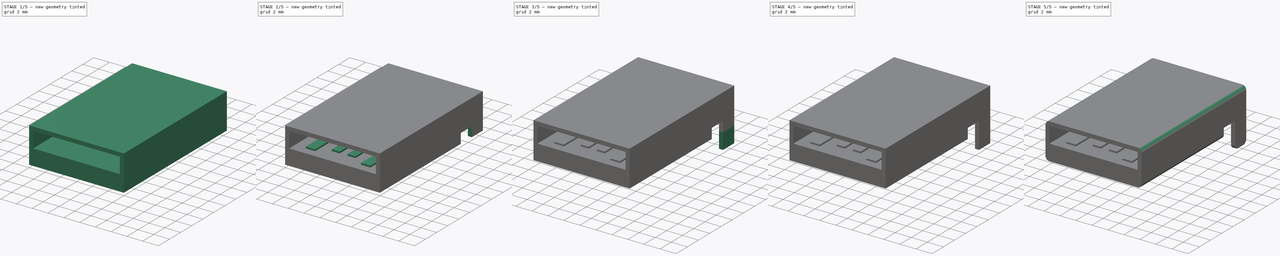
[diagram: build sequence overview — one tinted view per stage of 5, left to right]
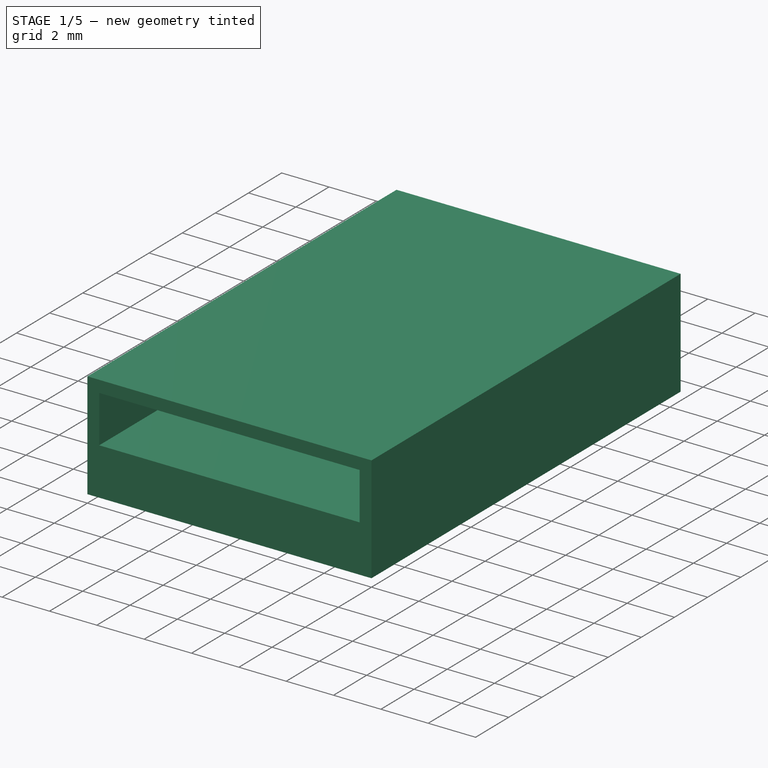
[diagram: stage 1 of 5 — iso view after this stage's code; geometry added in this stage tinted green]
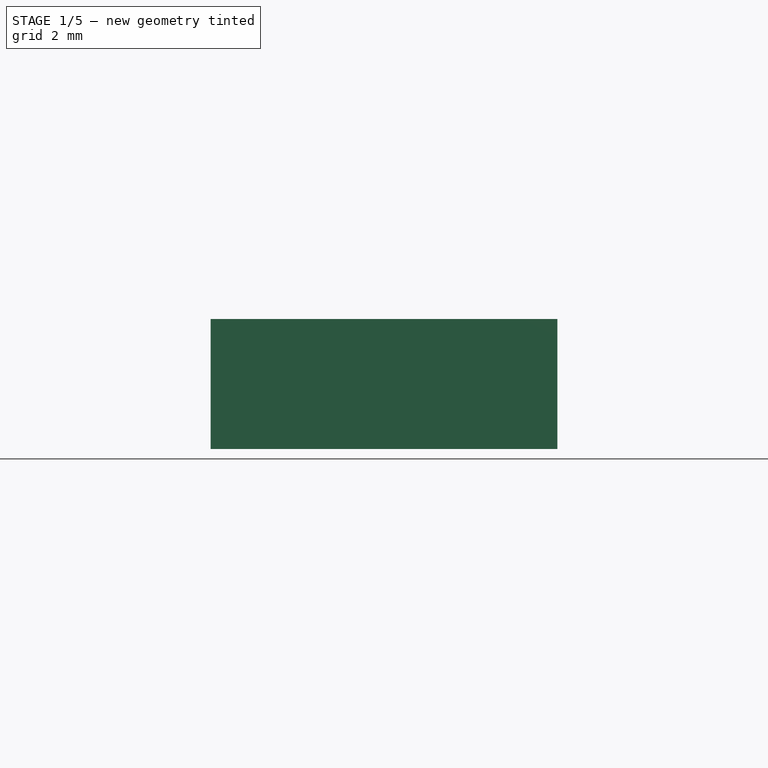
[diagram: stage 1 of 5 — front view after this stage's code; geometry added in this stage tinted green]
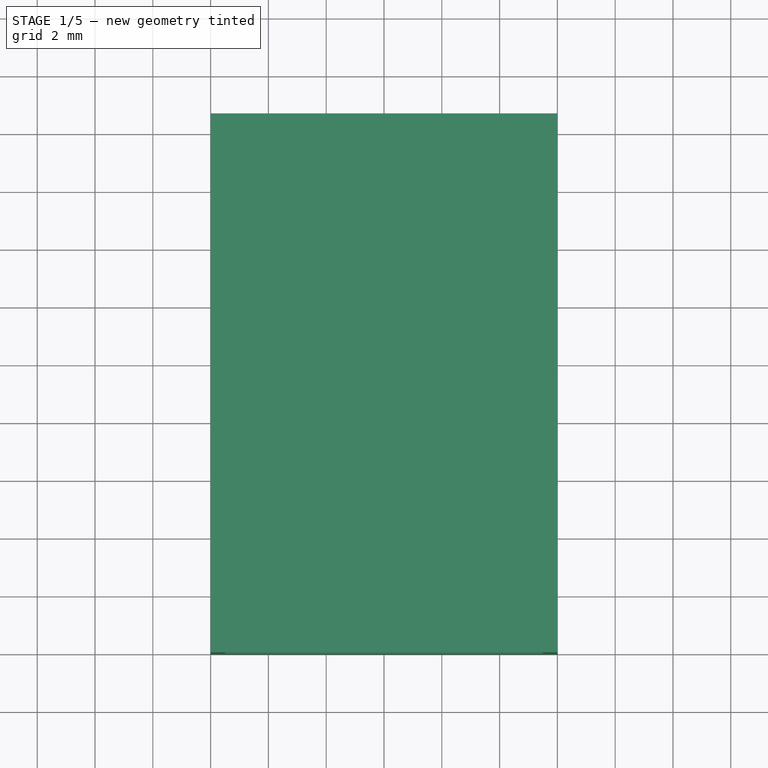
[diagram: stage 1 of 5 — top view after this stage's code; geometry added in this stage tinted green]
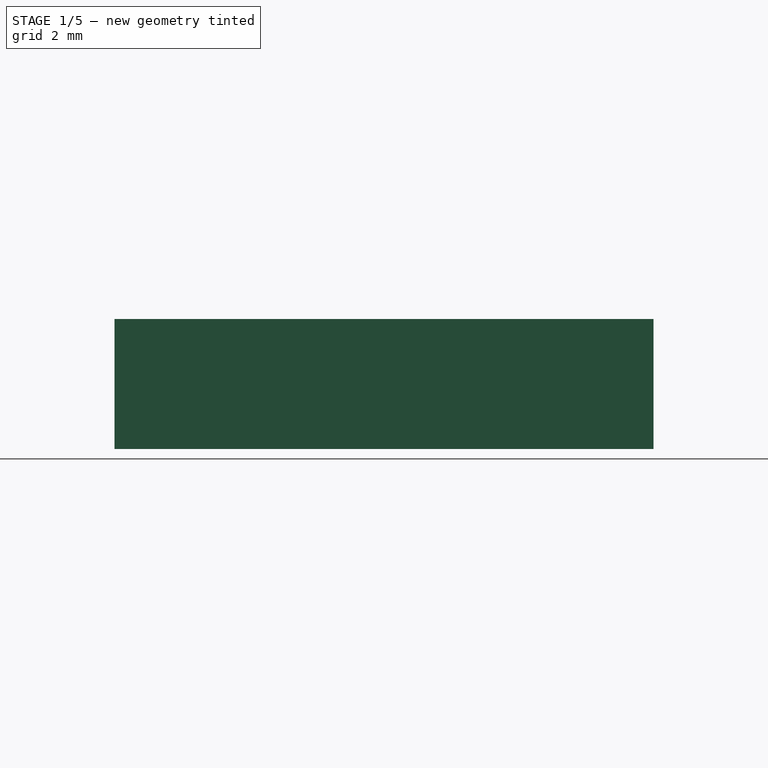
[diagram: stage 1 of 5 — right view after this stage's code; geometry added in this stage tinted green]
FCSTD DOCUMENT  (FreeCAD 0.16R6712 (Git))
Label: USB_CONNFLY_DS1098
License: All rights reserved
LicenseURL: http://en.wikipedia.org/wiki/All_rights_reserved
objects: Sketcher::SketchObject×8, PartDesign::Pad×7, Part::Compound×3, Part::Feature×3, Part::Box×2, Part::MultiFuse×2, Part::Cut×1, PartDesign::Pocket×1, Part::Fillet×1
note: 36 computed .brp shape members not serialized (recipe doc carries the construction recipe); baked Part::Feature solids carry a one-line shape summary decoded from their .brp

FEATURE [Part::Box] Box  label="obudowa"
  Height = 4.5
  Length = 12
  Width = 18.65
FEATURE [Part::Box] Box001  label="wnetrze"
  Height = 2
  Length = 11
  Placement = pos=(0.5,-1,2) rot=(0,0,1;0rad)
  Width = 18.65
FEATURE [Part::Cut] Cut  label="obudowa_wnetrze"
  Base = -> Box
  Tool = -> Box001
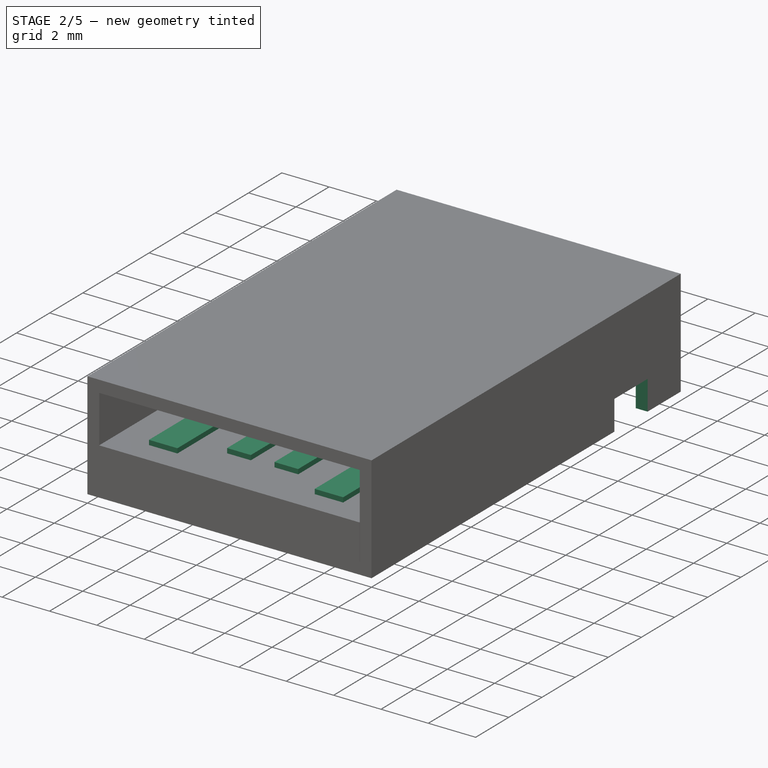
[diagram: stage 2 of 5 — iso view after this stage's code; geometry added in this stage tinted green]
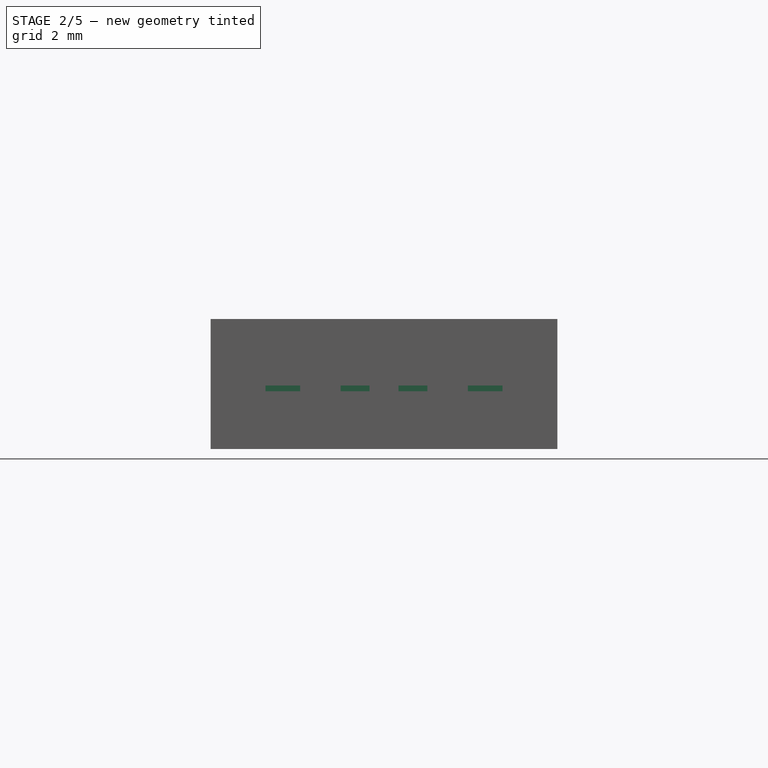
[diagram: stage 2 of 5 — front view after this stage's code; geometry added in this stage tinted green]
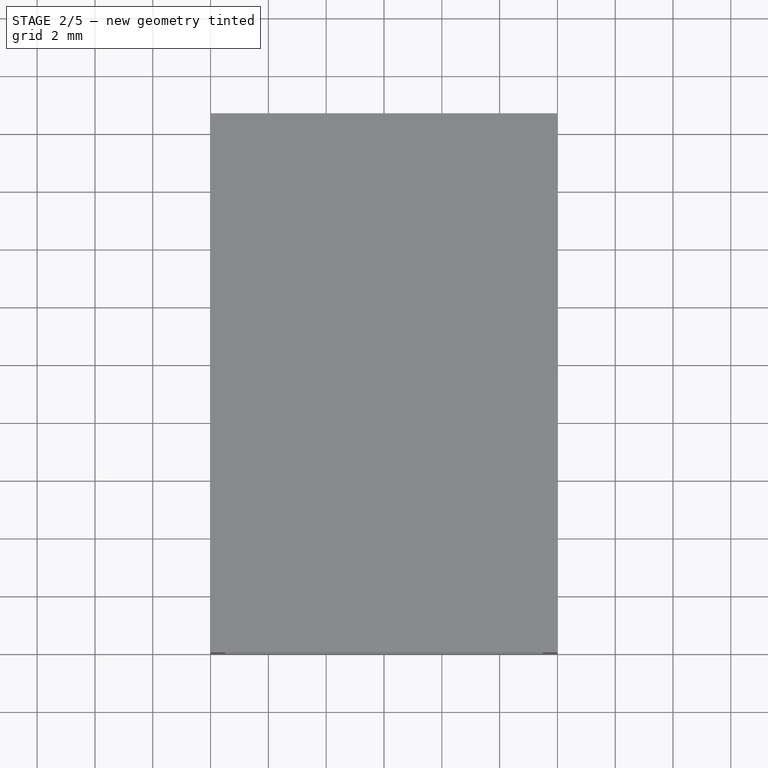
[diagram: stage 2 of 5 — top view after this stage's code; geometry added in this stage tinted green]
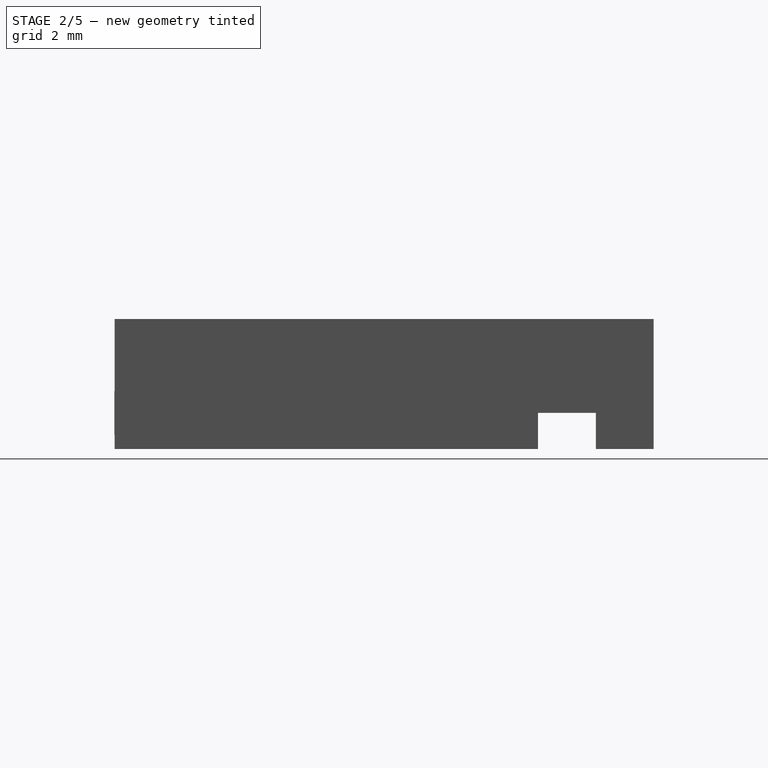
[diagram: stage 2 of 5 — right view after this stage's code; geometry added in this stage tinted green]
FEATURE [Sketcher::SketchObject] Sketch
  Placement = pos=(0,0,2) rot=(0,0,1;0rad)
  Support = -> Cut [Face8]
  expr: Constraints[60] = Constraints.pin_length - 2
  expr: Constraints[59] = Constraints.pin_length - 1
  expr: Constraints[41] = Constraints.szerokosc / 2
  sketch-geometry (22):
    g0: LineSegment StartX=4.5 StartY=16 StartZ=0 EndX=5.5 EndY=16 EndZ=0
    g1: LineSegment StartX=5.5 StartY=16 StartZ=0 EndX=5.5 EndY=2 EndZ=0
    g2: LineSegment StartX=5.5 StartY=2 StartZ=0 EndX=4.5 EndY=2 EndZ=0
    g3: LineSegment StartX=4.5 StartY=2 StartZ=0 EndX=4.5 EndY=16 EndZ=0
    g4: LineSegment StartX=6.5 StartY=16 StartZ=0 EndX=7.5 EndY=16 EndZ=0
    g5: LineSegment StartX=7.5 StartY=16 StartZ=0 EndX=7.5 EndY=2 EndZ=0
    g6: LineSegment StartX=7.5 StartY=2 StartZ=0 EndX=6.5 EndY=2 EndZ=0
    g7: LineSegment StartX=6.5 StartY=2 StartZ=0 EndX=6.5 EndY=16 EndZ=0
    g8: LineSegment StartX=1.9 StartY=16 StartZ=0 EndX=3.1 EndY=16 EndZ=0
    g9: LineSegment StartX=3.1 StartY=16 StartZ=0 EndX=3.1 EndY=1 EndZ=0
    g10: LineSegment StartX=3.1 StartY=1 StartZ=0 EndX=1.9 EndY=1 EndZ=0
    g11: LineSegment StartX=1.9 StartY=1 StartZ=0 EndX=1.9 EndY=16 EndZ=0
    g12: LineSegment StartX=8.9 StartY=16 StartZ=0 EndX=10.1 EndY=16 EndZ=0
    g13: LineSegment StartX=10.1 StartY=16 StartZ=0 EndX=10.1 EndY=1 EndZ=0
    g14: LineSegment StartX=10.1 StartY=1 StartZ=0 EndX=8.9 EndY=1 EndZ=0
    g15: LineSegment StartX=8.9 StartY=1 StartZ=0 EndX=8.9 EndY=16 EndZ=0
    g16: LineSegment [constr] StartX=0 StartY=16 StartZ=0 EndX=12 EndY=16 EndZ=0
    g17: LineSegment [constr] StartX=6 StartY=0 StartZ=0 EndX=6 EndY=15.4369 EndZ=0
    g18: LineSegment [constr] StartX=2.5 StartY=0.55838 StartZ=0 EndX=2.5 EndY=8.29714 EndZ=0
    g19: LineSegment [constr] StartX=5 StartY=0.575222 StartZ=0 EndX=5 EndY=8.21716 EndZ=0
    g20: LineSegment [constr] StartX=7 StartY=0.592064 StartZ=0 EndX=7 EndY=8.21716 EndZ=0
    g21: LineSegment [constr] StartX=9.5 StartY=0.60349 StartZ=0 EndX=9.5 EndY=8.29714 EndZ=0
  constraints (63):
    c: Coincident(g0,g1)
    c: Coincident(g1,g2)
    c: Coincident(g2,g3)
    c: Coincident(g3,g0)
    c: Horizontal(g0)
    c: Horizontal(g2)
    c: Vertical(g1)
    c: Vertical(g3)
    c: Coincident(g4,g5)
    c: Coincident(g5,g6)
    c: Coincident(g6,g7)
    c: Coincident(g7,g4)
    c: Horizontal(g4)
    c: Horizontal(g6)
    c: Vertical(g5)
    c: Vertical(g7)
    c: Coincident(g8,g9)
    c: Coincident(g9,g10)
    c: Coincident(g10,g11)
    c: Coincident(g11,g8)
    c: Horizontal(g8)
    c: Horizontal(g10)
    c: Vertical(g9)
    c: Vertical(g11)
    c: Coincident(g12,g13)
    c: Coincident(g13,g14)
    c: Coincident(g14,g15)
    c: Coincident(g15,g12)
    c: Horizontal(g12)
    c: Horizontal(g14)
    c: Vertical(g13)
    c: Vertical(g15)
    c: PointOnObject(g16,g-2)
    c: Horizontal(g16)
    c: PointOnObject(g8,g16)
    c: PointOnObject(g0,g16)
    c: PointOnObject(g4,g16)
    c: PointOnObject(g12,g16)
    c: PointOnObject(g17,g-1)
    c: Vertical(g17)
    c: DistanceX(g16,g16) = 12  'szerokosc'
    c: DistanceX(g17,g16) = 6
    c: Vertical(g18)
    c: Vertical(g19)
    c: Vertical(g20)
    c: Vertical(g21)
    c: Symmetric(g4,g4,g20)
    c: Symmetric(g12,g12,g21)
    c: Symmetric(g0,g0,g19)
    c: Symmetric(g8,g8,g18)
    c: DistanceX(g19,g20) = 2
    c: DistanceX(g18,g21) = 7
    c: Symmetric(g19,g20,g17)
    c: Symmetric(g18,g21,g17)
    c: Equal(g10,g14)
    c: Equal(g2,g6)
    c: DistanceX(g2,g2) = 1
    c: DistanceX(g10,g10) = 1.2
    c: Equal(g11,g15)
    c: DistanceY(g11,g11) = 15
    c: DistanceY(g3,g3) = 14
    c: Equal(g3,g7)
    c: DistanceY(g-1,g16) = 16  'pin_length'
FEATURE [PartDesign::Pad] Pad
  Length = 0.2
  Length2 = 100
  Sketch = -> Sketch
  Type = 0
FEATURE [Sketcher::SketchObject] Sketch001
  ExternalGeometry = -> [Pad]
  Placement = pos=(0,0,0) rot=(1,0,0;1.5708rad)
  Support = -> Pad [Face2]
  sketch-geometry (4):
    g0: LineSegment StartX=0.5 StartY=2 StartZ=0 EndX=11.5 EndY=2 EndZ=0
    g1: LineSegment StartX=11.5 StartY=2 StartZ=0 EndX=11.5 EndY=0.5 EndZ=0
    g2: LineSegment StartX=11.5 StartY=0.5 StartZ=0 EndX=0.5 EndY=0.5 EndZ=0
    g3: LineSegment StartX=0.5 StartY=0.5 StartZ=0 EndX=0.5 EndY=2 EndZ=0
  constraints (11):
    c: Coincident(g0,g1)
    c: Coincident(g1,g2)
    c: Coincident(g2,g3)
    c: Coincident(g3,g0)
    c: Horizontal(g0)
    c: Horizontal(g2)
    c: Vertical(g1)
    c: Vertical(g3)
    c: Coincident(g0,g-3)
    c: Coincident(g0,g-4)
    c: DistanceY(g-1,g2) = 0.5
FEATURE [PartDesign::Pad] Pad001
  Length = 0.01
  Length2 = 100
  Sketch = -> Sketch001
  Type = 0
FEATURE [Sketcher::SketchObject] Sketch007
  ExternalGeometry = -> [Pad001]
  Placement = pos=(0,0,0) rot=(1,0,0;3.14159rad)
  Support = -> Pad001 [Face5]
  sketch-geometry (8):
    g0: LineSegment StartX=0 StartY=-14.65 StartZ=0 EndX=12 EndY=-14.65 EndZ=0
    g1: LineSegment StartX=12 StartY=-14.65 StartZ=0 EndX=12 EndY=-16.65 EndZ=0
    g2: LineSegment StartX=12 StartY=-16.65 StartZ=0 EndX=11.5 EndY=-16.65 EndZ=0
    g3: LineSegment StartX=11.5 StartY=-16.65 StartZ=0 EndX=11.5 EndY=-18.65 EndZ=0
    g4: LineSegment StartX=11.5 StartY=-18.65 StartZ=0 EndX=0.5 EndY=-18.65 EndZ=0
    g5: LineSegment StartX=0.5 StartY=-18.65 StartZ=0 EndX=0.5 EndY=-16.65 EndZ=0
    g6: LineSegment StartX=0.5 StartY=-16.65 StartZ=0 EndX=0 EndY=-16.65 EndZ=0
    g7: LineSegment StartX=0 StartY=-16.65 StartZ=0 EndX=0 EndY=-14.65 EndZ=0
  constraints (24):
    c: Horizontal(g0)
    c: Coincident(g0,g1)
    c: Vertical(g1)
    c: Coincident(g1,g2)
    c: Horizontal(g2)
    c: Coincident(g2,g3)
    c: Vertical(g3)
    c: Coincident(g3,g4)
    c: Horizontal(g4)
    c: Coincident(g4,g5)
    c: Vertical(g5)
    c: Coincident(g5,g6)
    c: Horizontal(g6)
    c: Coincident(g6,g7)
    c: Coincident(g7,g0)
    c: Vertical(g7)
    c: PointOnObject(g0,g-4)
    c: PointOnObject(g0,g-5)
    c: PointOnObject(g3,g-3)
    c: Equal(g2,g6)
    c: Equal(g5,g3)
    c: DistanceX(g2,g2) = 0.5
    c: DistanceY(g-4,g6) = 2
    c: DistanceY(g-4,g0) = 4
FEATURE [PartDesign::Pocket] Pocket
  Length = 1.25
  Sketch = -> Sketch007
  Type = 0
FEATURE [Sketcher::SketchObject] Sketch008
  ExternalGeometry = -> [Pocket]
  Placement = pos=(0,0,1.25) rot=(1,0,0;3.14159rad)
  Support = -> Pocket [Face6]
  sketch-geometry (4):
    g0: LineSegment [constr] StartX=1.68553 StartY=-17.65 StartZ=0 EndX=9.98404 EndY=-17.65 EndZ=0
    g1: LineSegment [constr] StartX=6 StartY=-18.9775 StartZ=0 EndX=6 EndY=-16.2333 EndZ=0
    g2: Circle CenterX=3.75 CenterY=-17.65 CenterZ=0 NormalX=0 NormalY=0 NormalZ=1 Radius=0.7
    g3: Circle CenterX=8.25 CenterY=-17.65 CenterZ=0 NormalX=0 NormalY=0 NormalZ=1 Radius=0.7
  constraints (10):
    c: Horizontal(g0)
    c: DistanceY(g-3,g0) = 1
    c: Vertical(g1)
    c: DistanceX(g-4,g1) = 6
    c: PointOnObject(g2,g0)
    c: PointOnObject(g3,g0)
    c: Symmetric(g2,g3,g1)
    c: Equal(g3,g2)
    c: Radius(g3) = 0.7
    c: DistanceX(g2,g3) = 4.5
FEATURE [PartDesign::Pad] Pad007002  label="piny_mocujace"
  Length = 1
  Length2 = 100
  Sketch = -> Sketch008
  Type = 0
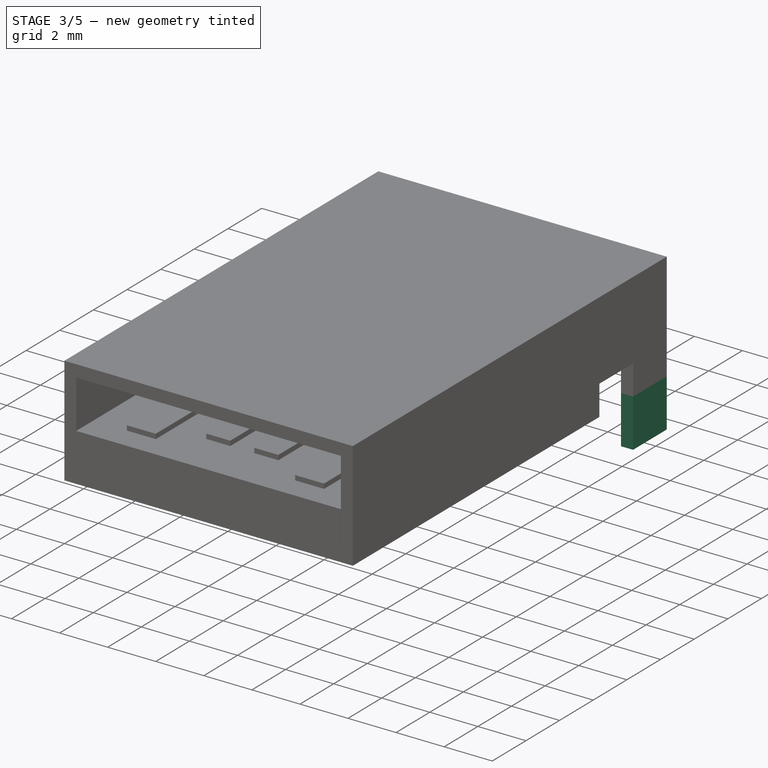
[diagram: stage 3 of 5 — iso view after this stage's code; geometry added in this stage tinted green]
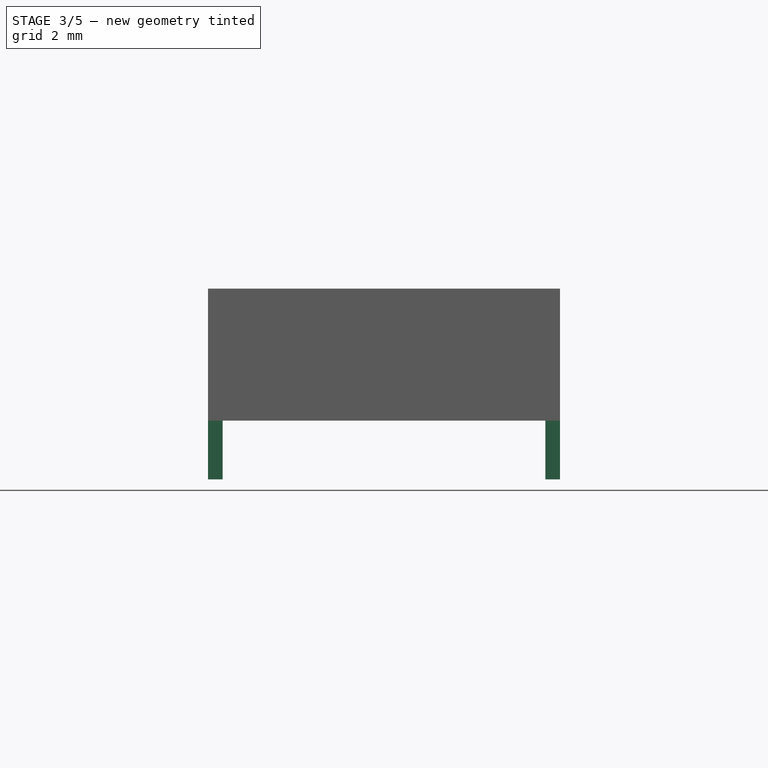
[diagram: stage 3 of 5 — front view after this stage's code; geometry added in this stage tinted green]
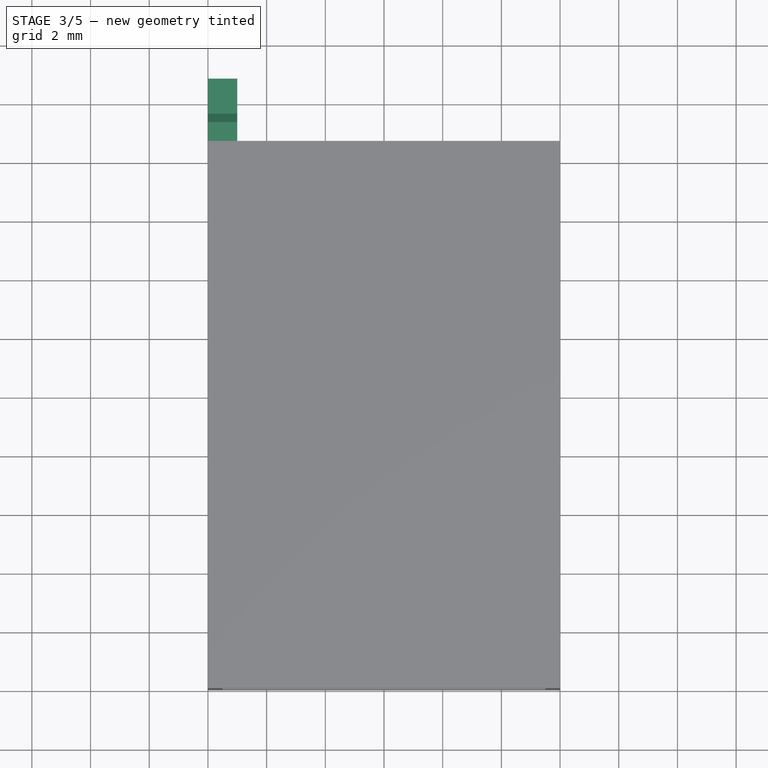
[diagram: stage 3 of 5 — top view after this stage's code; geometry added in this stage tinted green]
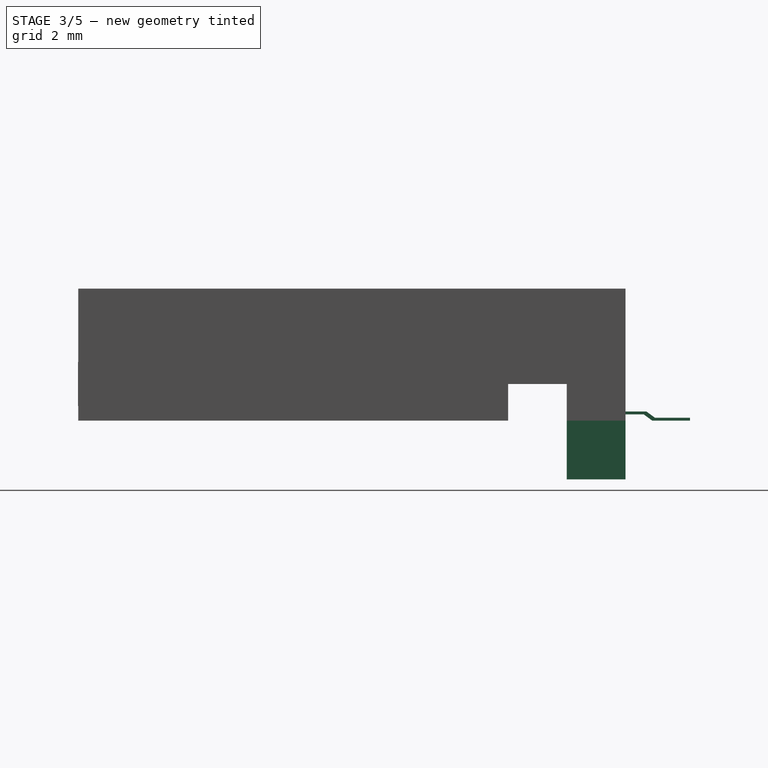
[diagram: stage 3 of 5 — right view after this stage's code; geometry added in this stage tinted green]
FEATURE [Part::Feature] Compound001  label="pin002"
  Placement = pos=(7,0,0) rot=(0,0,1;0rad)
  shape: bbox 1 x 2.2 x 0.3142 mm, 10 faces (baked)
FEATURE [Sketcher::SketchObject] Sketch003  label="pin003"
  Placement = pos=(0,0,0) rot=(0.57735,0.57735,0.57735;2.0944rad)
  sketch-geometry (8):
    g0: LineSegment StartX=18.65 StartY=0.314175 StartZ=0 EndX=19.3622 EndY=0.314175 EndZ=0
    g1: LineSegment StartX=19.3622 StartY=0.314175 StartZ=0 EndX=19.6547 EndY=0.1 EndZ=0
    g2: LineSegment StartX=19.6547 StartY=0.1 StartZ=0 EndX=20.85 EndY=0.1 EndZ=0
    g3: LineSegment StartX=20.85 StartY=0.1 StartZ=0 EndX=20.85 EndY=0 EndZ=0
    g4: LineSegment StartX=20.85 StartY=0 StartZ=0 EndX=19.5639 EndY=0 EndZ=0
    g5: LineSegment StartX=19.5639 StartY=0 StartZ=0 EndX=19.2714 EndY=0.214175 EndZ=0
    g6: LineSegment StartX=19.2714 StartY=0.214175 StartZ=0 EndX=18.65 EndY=0.214175 EndZ=0
    g7: LineSegment StartX=18.65 StartY=0.214175 StartZ=0 EndX=18.65 EndY=0.314175 EndZ=0
  constraints (20):
    c: Horizontal(g0)
    c: Coincident(g0,g1)
    c: Coincident(g1,g2)
    c: Horizontal(g2)
    c: Coincident(g2,g3)
    c: PointOnObject(g3,g-1)
    c: Coincident(g3,g4)
    c: PointOnObject(g4,g-1)
    c: Coincident(g4,g5)
    c: Coincident(g5,g6)
    c: Horizontal(g6)
    c: Coincident(g6,g7)
    c: Vertical(g7)
    c: Coincident(g7,g0)
    c: Vertical(g3)
    c: Equal(g3,g7)
    c: DistanceY(g3,g3) = 0.1
    c: DistanceX(g0,g2) = 2.2
    c: DistanceX(g-1,g3) = 20.85
    c: Parallel(g1,g5)
FEATURE [PartDesign::Pad] Pad003
  Length = 1
  Length2 = 100
  Placement = pos=(0,0,0) rot=(0.57735,0.57735,0.57735;2.0944rad)
  Sketch = -> Sketch003
  Type = 0
FEATURE [Sketcher::SketchObject] Sketch006
  Placement = pos=(12,0,0) rot=(0.57735,0.57735,0.57735;2.0944rad)
  sketch-geometry (4):
    g0: LineSegment StartX=18.65 StartY=0 StartZ=0 EndX=16.65 EndY=0 EndZ=0
    g1: LineSegment StartX=16.65 StartY=0 StartZ=0 EndX=16.65 EndY=-2 EndZ=0
    g2: LineSegment StartX=16.65 StartY=-2 StartZ=0 EndX=18.65 EndY=-2 EndZ=0
    g3: LineSegment StartX=18.65 StartY=-2 StartZ=0 EndX=18.65 EndY=0 EndZ=0
  constraints (10):
    c: Coincident(g0,g1)
    c: Coincident(g1,g2)
    c: Coincident(g2,g3)
    c: Coincident(g3,g0)
    c: Horizontal(g0)
    c: Horizontal(g2)
    c: Vertical(g1)
    c: Vertical(g3)
    c: DistanceX(g0,g0) = 2
    c: DistanceY(g3,g3) = 2
FEATURE [PartDesign::Pad] Pad007  label="nozka1"
  Length = 0.5
  Length2 = 100
  Placement = pos=(12,0,0) rot=(0.57735,0.57735,0.57735;2.0944rad)
  Reversed = true
  Sketch = -> Sketch006
  Type = 0
FEATURE [Part::Feature] Pad007001  label="nozka002"
  Placement = pos=(0.5,0,0) rot=(0.57735,0.57735,0.57735;2.0944rad)
  shape: bbox 0.5 x 2 x 2 mm, 6 faces (baked)
FEATURE [Part::MultiFuse] Fusion  label="nozki_montazowe"
  Shapes = -> [Pad007,Pad007001]
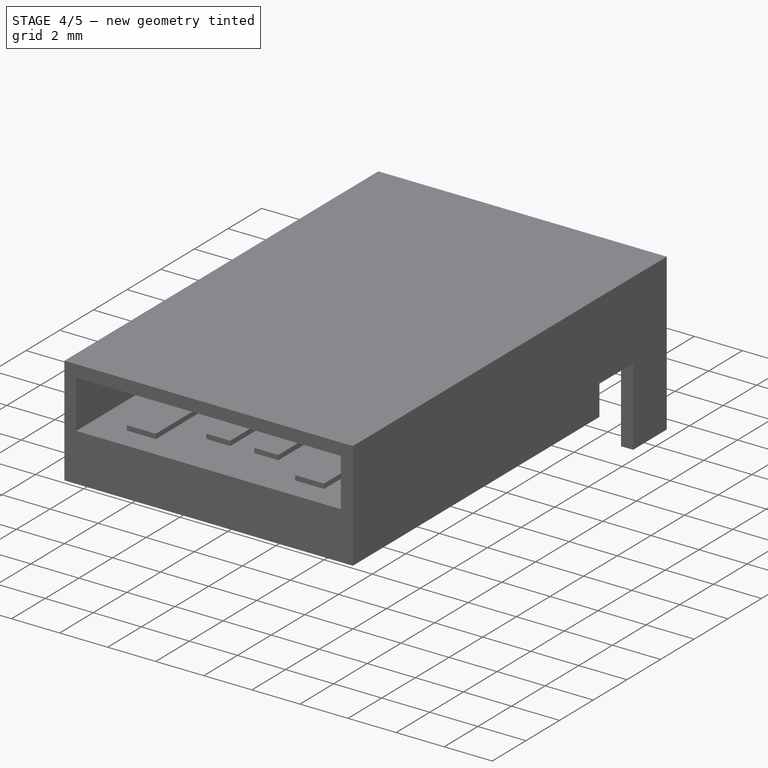
[diagram: stage 4 of 5 — iso view after this stage's code; geometry added in this stage tinted green]
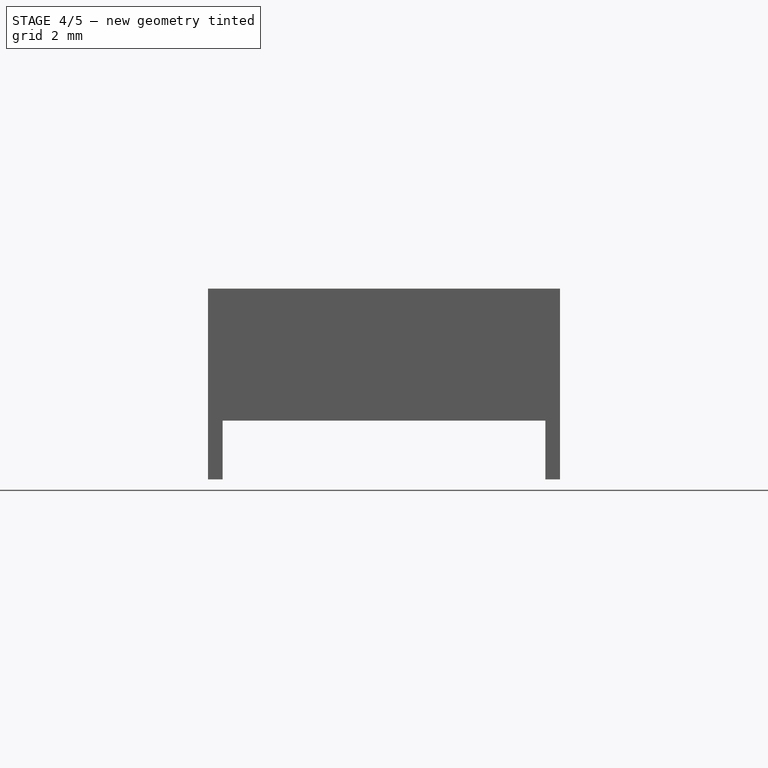
[diagram: stage 4 of 5 — front view after this stage's code; geometry added in this stage tinted green]
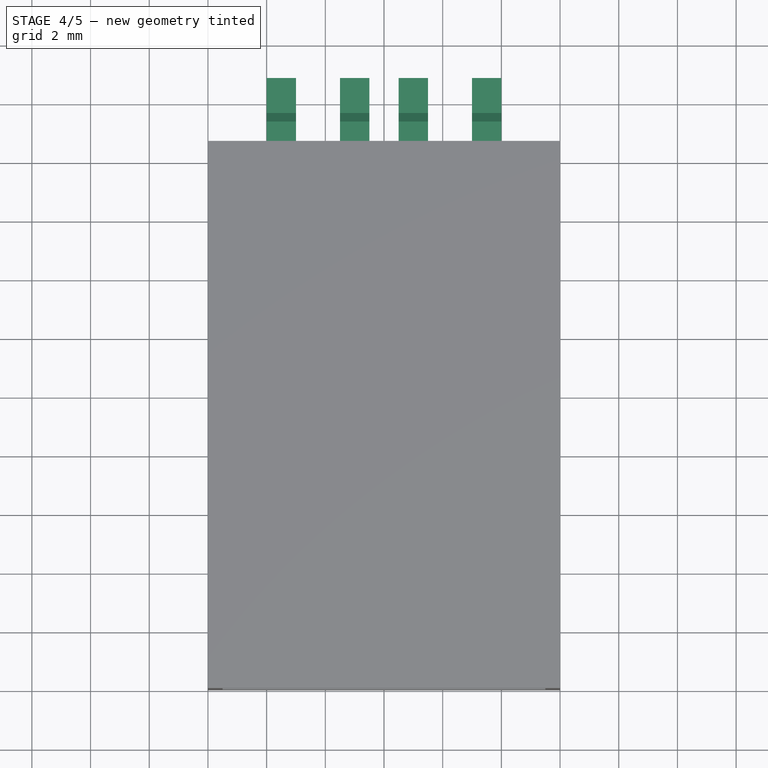
[diagram: stage 4 of 5 — top view after this stage's code; geometry added in this stage tinted green]
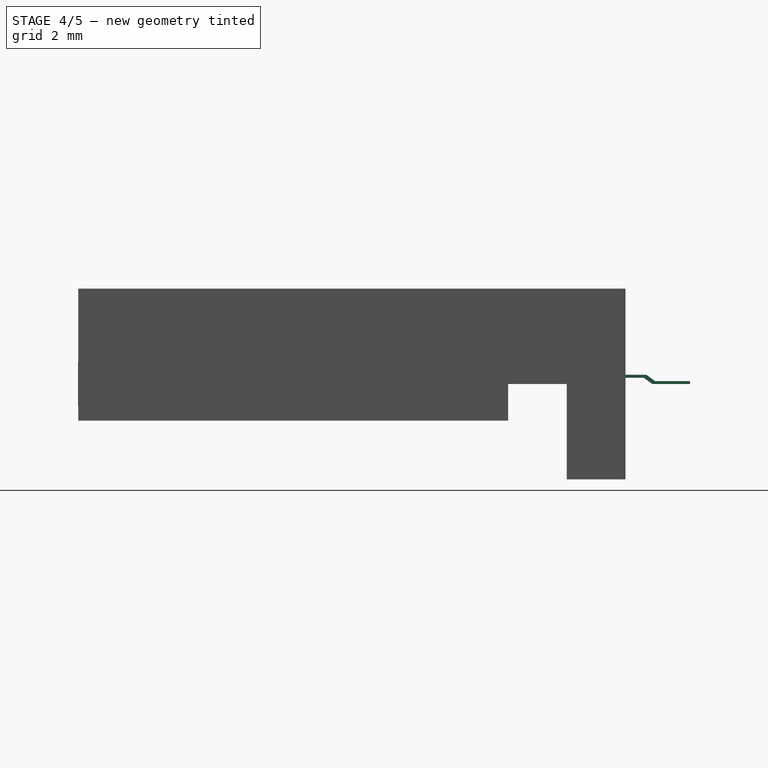
[diagram: stage 4 of 5 — right view after this stage's code; geometry added in this stage tinted green]
FEATURE [Sketcher::SketchObject] Sketch002  label="pin"
  Placement = pos=(0,0,0) rot=(0.57735,0.57735,0.57735;2.0944rad)
  sketch-geometry (8):
    g0: LineSegment StartX=18.65 StartY=0.314175 StartZ=0 EndX=19.3622 EndY=0.314175 EndZ=0
    g1: LineSegment StartX=19.3622 StartY=0.314175 StartZ=0 EndX=19.6547 EndY=0.1 EndZ=0
    g2: LineSegment StartX=19.6547 StartY=0.1 StartZ=0 EndX=20.85 EndY=0.1 EndZ=0
    g3: LineSegment StartX=20.85 StartY=0.1 StartZ=0 EndX=20.85 EndY=0 EndZ=0
    g4: LineSegment StartX=20.85 StartY=0 StartZ=0 EndX=19.5639 EndY=0 EndZ=0
    g5: LineSegment StartX=19.5639 StartY=0 StartZ=0 EndX=19.2714 EndY=0.214175 EndZ=0
    g6: LineSegment StartX=19.2714 StartY=0.214175 StartZ=0 EndX=18.65 EndY=0.214175 EndZ=0
    g7: LineSegment StartX=18.65 StartY=0.214175 StartZ=0 EndX=18.65 EndY=0.314175 EndZ=0
  constraints (20):
    c: Horizontal(g0)
    c: Coincident(g0,g1)
    c: Coincident(g1,g2)
    c: Horizontal(g2)
    c: Coincident(g2,g3)
    c: PointOnObject(g3,g-1)
    c: Coincident(g3,g4)
    c: PointOnObject(g4,g-1)
    c: Coincident(g4,g5)
    c: Coincident(g5,g6)
    c: Horizontal(g6)
    c: Coincident(g6,g7)
    c: Vertical(g7)
    c: Coincident(g7,g0)
    c: Vertical(g3)
    c: Equal(g3,g7)
    c: DistanceY(g3,g3) = 0.1
    c: DistanceX(g0,g2) = 2.2
    c: DistanceX(g-1,g3) = 20.85
    c: Parallel(g1,g5)
FEATURE [PartDesign::Pad] Pad002
  Length = 1
  Length2 = 100
  Placement = pos=(0,0,0) rot=(0.57735,0.57735,0.57735;2.0944rad)
  Sketch = -> Sketch002
  Type = 0
FEATURE [Part::Compound] Compound  label="pin001"
  Links = -> [Pad002]
  Placement = pos=(5,0,0) rot=(0,0,1;0rad)
FEATURE [Part::Compound] Compound002  label="pin004"
  Links = -> [Pad003]
  Placement = pos=(2.5,0,0) rot=(0,0,1;0rad)
FEATURE [Part::Feature] Compound003  label="pin005"
  Placement = pos=(9.5,0,0) rot=(0,0,1;0rad)
  shape: bbox 1 x 2.2 x 0.3142 mm, 10 faces (baked)
FEATURE [Part::Compound] Compound004  label="pins"
  Links = -> [Compound,Compound001,Compound002,Compound003]
  Placement = pos=(-0.5,0,1.25) rot=(0,0,1;0rad)
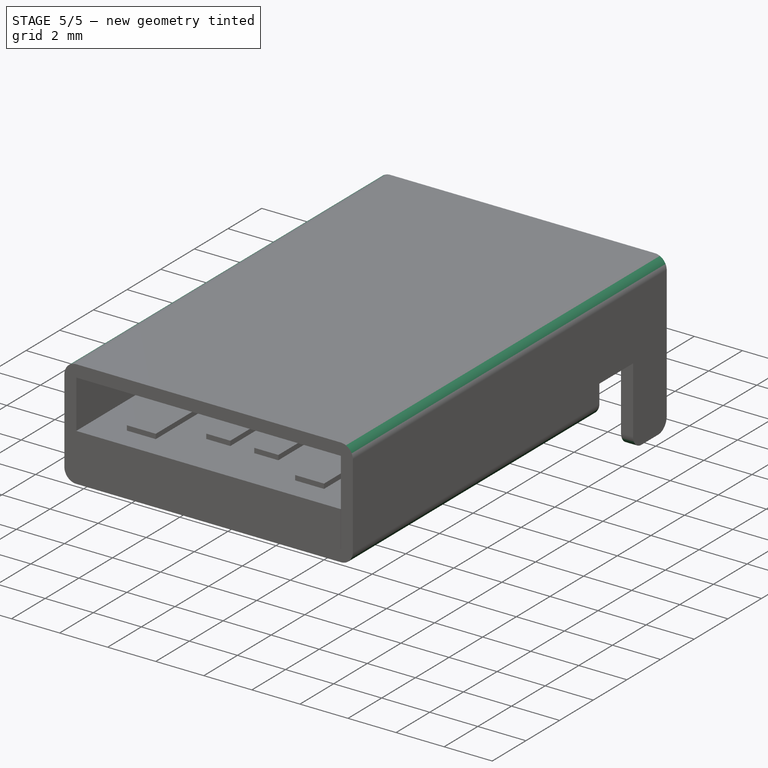
[diagram: stage 5 of 5 — iso view after this stage's code; geometry added in this stage tinted green]
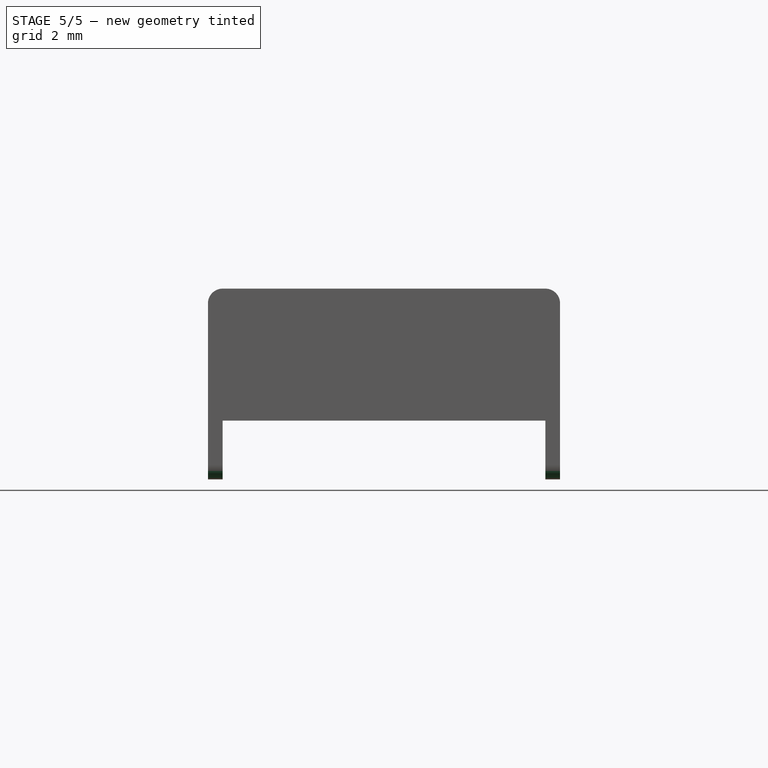
[diagram: stage 5 of 5 — front view after this stage's code; geometry added in this stage tinted green]
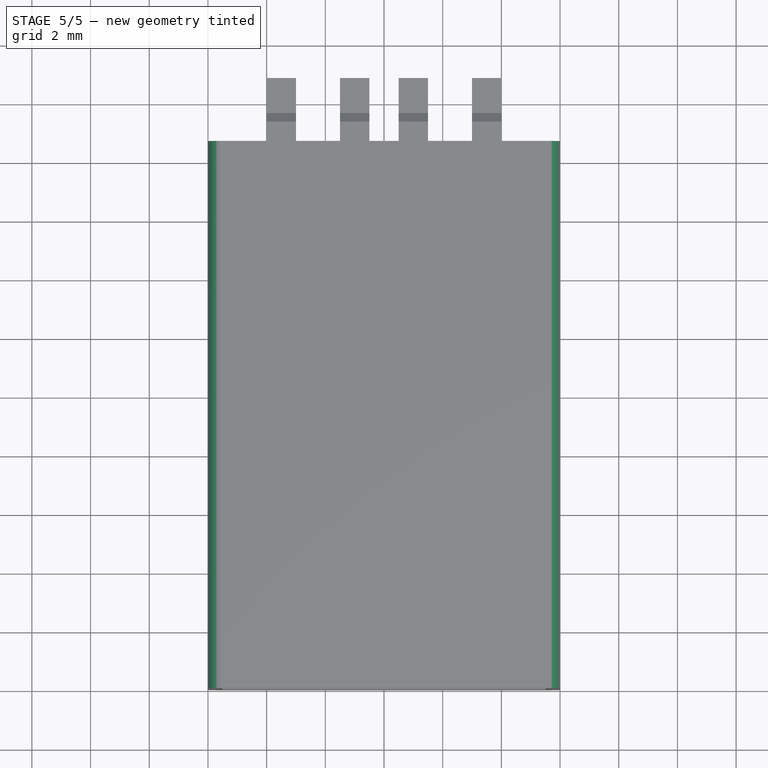
[diagram: stage 5 of 5 — top view after this stage's code; geometry added in this stage tinted green]
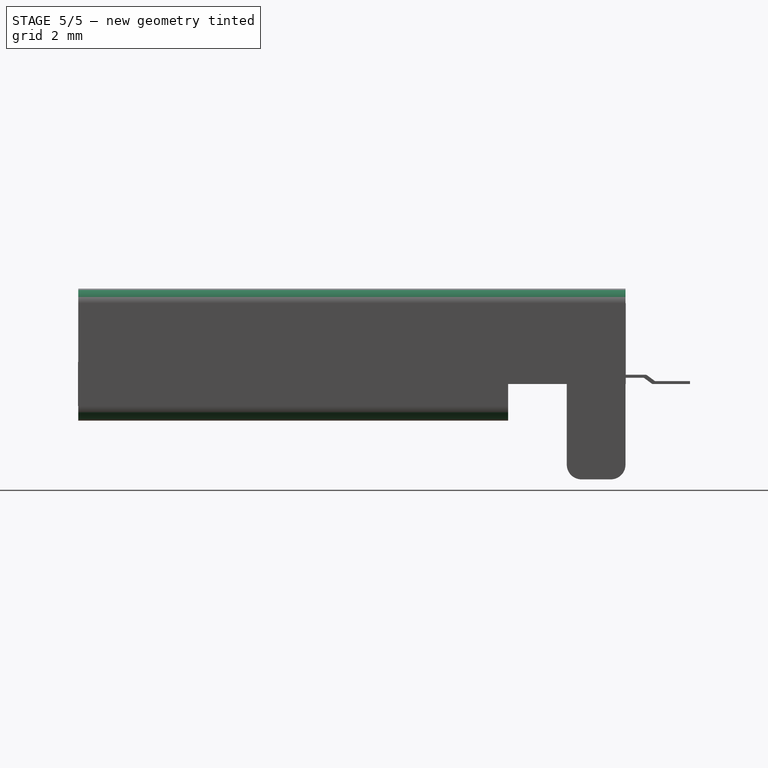
[diagram: stage 5 of 5 — right view after this stage's code; geometry added in this stage tinted green]
FEATURE [Part::MultiFuse] Fusion001  label="USB"
  Shapes = -> [Pad007002,Fusion,Compound004]
FEATURE [Part::Fillet] Fillet
  Base = -> Fusion001
  Edges = 8 edges r=0.5: [Edge1,Edge3,Edge8,Edge36,Edge60,Edge65,Edge150,Edge158]
FEATURE [Sketcher::SketchObject] Sketch009
  ExternalGeometry = -> [Fillet]
  Placement = pos=(0,18.65,0) rot=(0,0.707107,0.707107;3.14159rad)
  Support = -> Fillet [Face2]
  sketch-geometry (4):
    g0: LineSegment StartX=-11.5 StartY=1.25 StartZ=0 EndX=-0.5 EndY=1.25 EndZ=0
    g1: LineSegment StartX=-0.5 StartY=1.25 StartZ=0 EndX=-0.5 EndY=4 EndZ=0
    g2: LineSegment StartX=-0.5 StartY=4 StartZ=0 EndX=-11.5 EndY=4 EndZ=0
    g3: LineSegment StartX=-11.5 StartY=4 StartZ=0 EndX=-11.5 EndY=1.25 EndZ=0
  constraints (11):
    c: Coincident(g0,g1)
    c: Coincident(g1,g2)
    c: Coincident(g2,g3)
    c: Coincident(g3,g0)
    c: Horizontal(g0)
    c: Horizontal(g2)
    c: Vertical(g1)
    c: Vertical(g3)
    c: Coincident(g0,g-3)
    c: Coincident(g0,g-3)
    c: DistanceY(g1,g-4) = 0.5
FEATURE [PartDesign::Pad] Pad007003  label="USBA"
  Length = 0.01
  Length2 = 100
  Sketch = -> Sketch009
  Type = 0
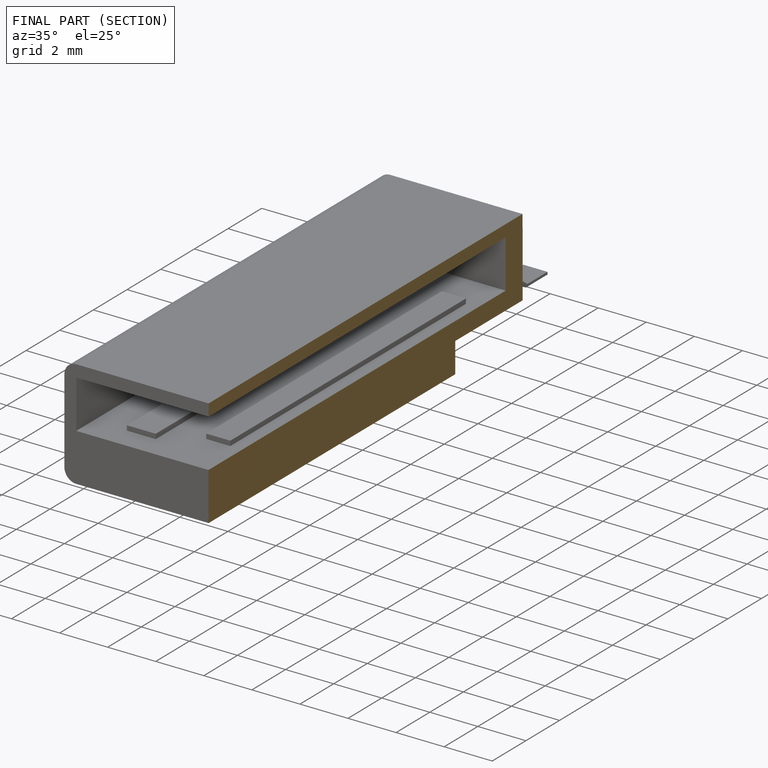
[diagram: finished part — half-section view (interior)]
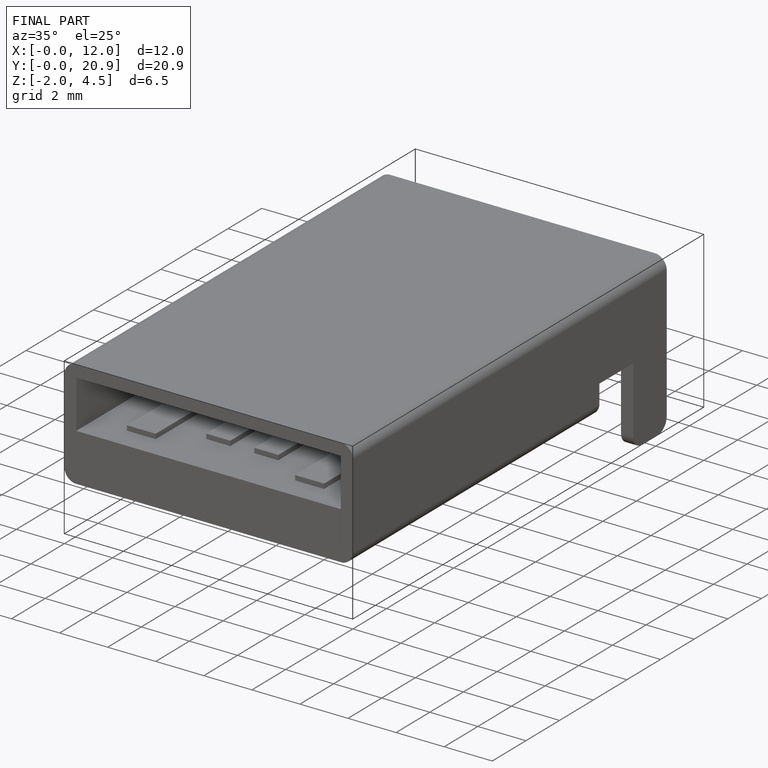
[diagram: finished part — iso view with bounding-box wireframe]
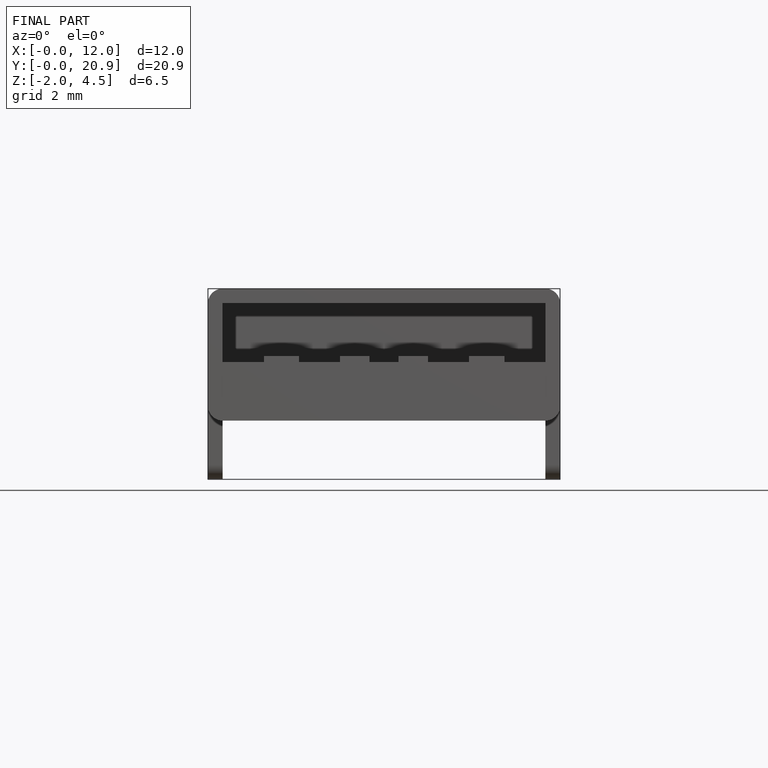
[diagram: finished part — front view with bounding-box wireframe]
